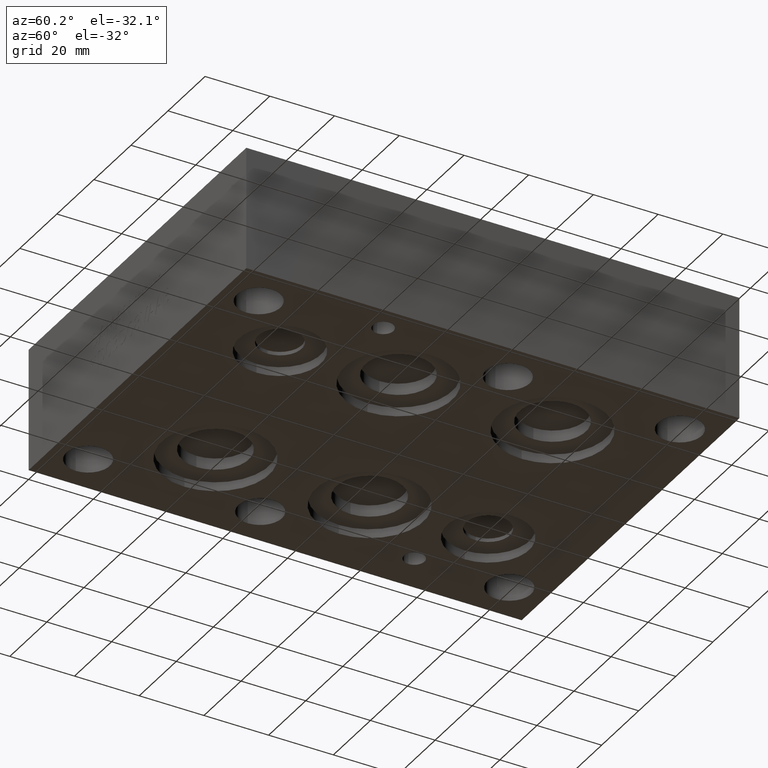
[diagram: clean part render]
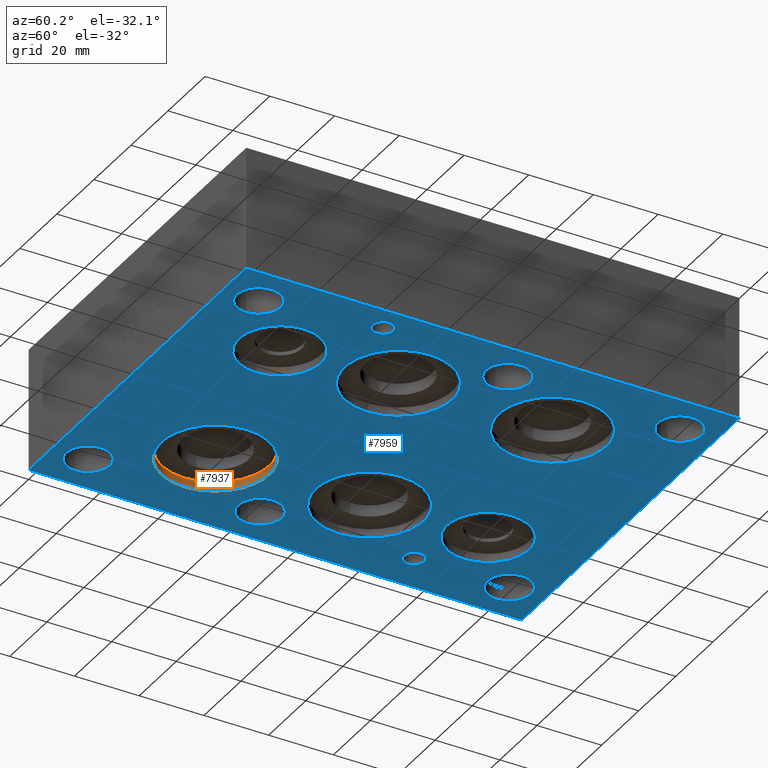
[diagram: same view with the hole feature highlighted: cylindrical wall and planar end face, labeled with their STEP entity ids]
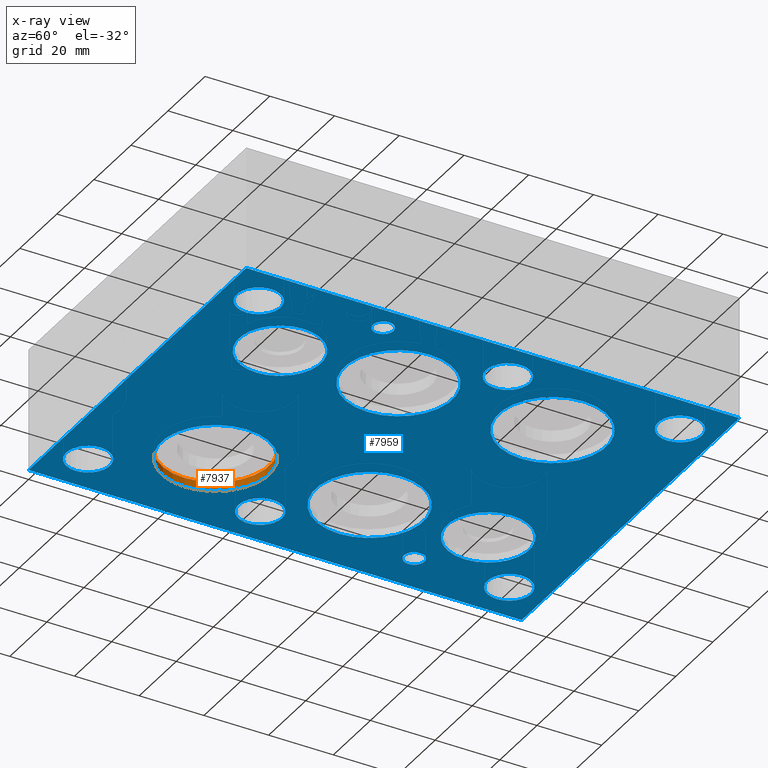
[diagram: x-ray of the same camera — body ghosted, the hole faces saturated]
A machine part, auxiliary view. The highlighted faces form one hole feature of diameter 33.3502 mm: the cylindrical wall (entity #7937, orange) and its adjacent planar end face (entity #7959, blue) — they share a circular edge in the B-rep.
The next image is the same camera in x-ray (body ghosted, the hole faces saturated) — the bore reads through the body.
Wall:
#53=CIRCLE('',#8298,16.6751);
#54=CIRCLE('',#8299,16.6751);
#137=CYLINDRICAL_SURFACE('',#8297,16.6751);
#908=FACE_OUTER_BOUND('',#1368,.T.);
#1368=EDGE_LOOP('',(#6696,#6697,#6698,#6699));
#2196=LINE('',#13279,#2975);
#2975=VECTOR('',#9708,16.6751);
#3664=VERTEX_POINT('',#13276);
#3665=VERTEX_POINT('',#13278);
#4699=EDGE_CURVE('',#3664,#3664,#53,.T.);
#4700=EDGE_CURVE('',#3664,#3665,#2196,.T.);
#4701=EDGE_CURVE('',#3665,#3665,#54,.T.);
#6696=ORIENTED_EDGE('',*,*,#4699,.F.);
#6697=ORIENTED_EDGE('',*,*,#4700,.T.);
#6698=ORIENTED_EDGE('',*,*,#4701,.F.);
#6699=ORIENTED_EDGE('',*,*,#4700,.F.);
#7937=ADVANCED_FACE('',(#908),#137,.F.);
#8297=AXIS2_PLACEMENT_3D('',#13275,#9704,#9705);
#8298=AXIS2_PLACEMENT_3D('',#13277,#9706,#9707);
#8299=AXIS2_PLACEMENT_3D('',#13280,#9709,#9710);
#9704=DIRECTION('center_axis',(0.,0.,-1.));
#9705=DIRECTION('ref_axis',(1.,0.,0.));
#9706=DIRECTION('center_axis',(0.,0.,1.));
#9707=DIRECTION('ref_axis',(1.,0.,0.));
#9708=DIRECTION('',(0.,0.,1.));
#9709=DIRECTION('center_axis',(0.,0.,-1.));
#9710=DIRECTION('ref_axis',(1.,0.,0.));
#13275=CARTESIAN_POINT('Origin',(30.1625,40.4749,1.397));
#13276=CARTESIAN_POINT('',(13.4874,40.4749,0.));
#13277=CARTESIAN_POINT('Origin',(30.1625,40.4749,0.));
#13278=CARTESIAN_POINT('',(13.4874,40.4749,2.794));
#13279=CARTESIAN_POINT('',(13.4874,40.4749,1.397));
#13280=CARTESIAN_POINT('Origin',(30.1625,40.4749,2.794));
End face:
#33=CIRCLE('',#8260,12.7);
#36=CIRCLE('',#8265,12.7);
#47=CIRCLE('',#8286,16.6751);
#49=CIRCLE('',#8290,16.6751);
#51=CIRCLE('',#8294,16.6751);
#53=CIRCLE('',#8298,16.6751);
#56=CIRCLE('',#8304,3.175);
#58=CIRCLE('',#8308,3.175);
#61=CIRCLE('',#8315,6.7437);
#63=CIRCLE('',#8319,6.7437);
#65=CIRCLE('',#8323,6.7437);
#67=CIRCLE('',#8327,6.7437);
#69=CIRCLE('',#8331,6.7437);
#71=CIRCLE('',#8335,6.7437);
#73=CIRCLE('',#8340,6.7437);
#74=CIRCLE('',#8341,6.7437);
#75=CIRCLE('',#8342,6.7437);
#76=CIRCLE('',#8343,6.7437);
#77=CIRCLE('',#8344,6.7437);
#78=CIRCLE('',#8345,6.7437);
#79=CIRCLE('',#8346,6.7437);
#80=CIRCLE('',#8347,6.7437);
#81=CIRCLE('',#8348,6.7437);
#82=CIRCLE('',#8349,6.7437);
#83=CIRCLE('',#8350,6.7437);
#518=FACE_BOUND('',#1392,.T.);
#519=FACE_BOUND('',#1393,.T.);
#520=FACE_BOUND('',#1394,.T.);
#521=FACE_BOUND('',#1395,.T.);
#522=FACE_BOUND('',#1396,.T.);
#523=FACE_BOUND('',#1397,.T.);
#524=FACE_BOUND('',#1398,.T.);
#525=FACE_BOUND('',#1399,.T.);
#526=FACE_BOUND('',#1400,.T.);
#527=FACE_BOUND('',#1401,.T.);
#528=FACE_BOUND('',#1402,.T.);
#529=FACE_BOUND('',#1403,.T.);
#530=FACE_BOUND('',#1404,.T.);
#531=FACE_BOUND('',#1405,.T.);
#930=FACE_OUTER_BOUND('',#1391,.T.);
#1391=EDGE_LOOP('',(#6767,#6768,#6769,#6770));
#1392=EDGE_LOOP('',(#6771));
#1393=EDGE_LOOP('',(#6772));
#1394=EDGE_LOOP('',(#6773));
#1395=EDGE_LOOP('',(#6774));
#1396=EDGE_LOOP('',(#6775));
#1397=EDGE_LOOP('',(#6776));
#1398=EDGE_LOOP('',(#6777));
#1399=EDGE_LOOP('',(#6778));
#1400=EDGE_LOOP('',(#6779,#6780));
#1401=EDGE_LOOP('',(#6781,#6782,#6783));
#1402=EDGE_LOOP('',(#6784,#6785,#6786));
#1403=EDGE_LOOP('',(#6787,#6788,#6789));
#1404=EDGE_LOOP('',(#6790,#6791,#6792));
#1405=EDGE_LOOP('',(#6793,#6794,#6795));
#1857=LINE('',#10964,#2636);
#2217=LINE('',#13514,#2996);
#2218=LINE('',#13516,#2997);
#2219=LINE('',#13517,#2998);
#2636=VECTOR('',#9089,10.);
#2996=VECTOR('',#9811,10.);
#2997=VECTOR('',#9812,10.);
#2998=VECTOR('',#9813,10.);
#3300=VERTEX_POINT('',#10962);
#3301=VERTEX_POINT('',#10963);
#3644=VERTEX_POINT('',#13209);
#3647=VERTEX_POINT('',#13218);
#3658=VERTEX_POINT('',#13255);
#3660=VERTEX_POINT('',#13262);
#3662=VERTEX_POINT('',#13269);
#3664=VERTEX_POINT('',#13276);
#3668=VERTEX_POINT('',#13288);
#3671=VERTEX_POINT('',#13297);
#3676=VERTEX_POINT('',#13335);
#3677=VERTEX_POINT('',#13337);
#3680=VERTEX_POINT('',#13366);
#3681=VERTEX_POINT('',#13368);
#3685=VERTEX_POINT('',#13403);
#3686=VERTEX_POINT('',#13405);
#3689=VERTEX_POINT('',#13436);
#3690=VERTEX_POINT('',#13438);
#3693=VERTEX_POINT('',#13469);
#3694=VERTEX_POINT('',#13471);
#3697=VERTEX_POINT('',#13500);
#3698=VERTEX_POINT('',#13502);
#3701=VERTEX_POINT('',#13513);
#3702=VERTEX_POINT('',#13515);
#3703=VERTEX_POINT('',#13519);
#3704=VERTEX_POINT('',#13522);
#3705=VERTEX_POINT('',#13525);
#3706=VERTEX_POINT('',#13528);
#3707=VERTEX_POINT('',#13531);
#4156=EDGE_CURVE('',#3300,#3301,#1857,.T.);
#4670=EDGE_CURVE('',#3644,#3644,#33,.T.);
#4674=EDGE_CURVE('',#3647,#3647,#36,.T.);
#4690=EDGE_CURVE('',#3658,#3658,#47,.T.);
#4693=EDGE_CURVE('',#3660,#3660,#49,.T.);
#4696=EDGE_CURVE('',#3662,#3662,#51,.T.);
#4699=EDGE_CURVE('',#3664,#3664,#53,.T.);
#4704=EDGE_CURVE('',#3668,#3668,#56,.T.);
#4708=EDGE_CURVE('',#3671,#3671,#58,.T.);
#4717=EDGE_CURVE('',#3676,#3677,#61,.T.);
#4722=EDGE_CURVE('',#3680,#3681,#63,.T.);
#4728=EDGE_CURVE('',#3685,#3686,#65,.T.);
#4733=EDGE_CURVE('',#3689,#3690,#67,.T.);
#4738=EDGE_CURVE('',#3693,#3694,#69,.T.);
#4743=EDGE_CURVE('',#3697,#3698,#71,.T.);
#4747=EDGE_CURVE('',#3701,#3300,#2217,.T.);
#4748=EDGE_CURVE('',#3702,#3701,#2218,.T.);
#4749=EDGE_CURVE('',#3301,#3702,#2219,.T.);
#4750=EDGE_CURVE('',#3686,#3685,#73,.T.);
#4751=EDGE_CURVE('',#3698,#3703,#74,.T.);
#4752=EDGE_CURVE('',#3703,#3697,#75,.T.);
#4753=EDGE_CURVE('',#3677,#3704,#76,.T.);
#4754=EDGE_CURVE('',#3704,#3676,#77,.T.);
#4755=EDGE_CURVE('',#3694,#3705,#78,.T.);
#4756=EDGE_CURVE('',#3705,#3693,#79,.T.);
#4757=EDGE_CURVE('',#3681,#3706,#80,.T.);
#4758=EDGE_CURVE('',#3706,#3680,#81,.T.);
#4759=EDGE_CURVE('',#3690,#3707,#82,.T.);
#4760=EDGE_CURVE('',#3707,#3689,#83,.T.);
#6767=ORIENTED_EDGE('',*,*,#4156,.F.);
#6768=ORIENTED_EDGE('',*,*,#4747,.F.);
#6769=ORIENTED_EDGE('',*,*,#4748,.F.);
#6770=ORIENTED_EDGE('',*,*,#4749,.F.);
#6771=ORIENTED_EDGE('',*,*,#4670,.T.);
#6772=ORIENTED_EDGE('',*,*,#4674,.T.);
#6773=ORIENTED_EDGE('',*,*,#4690,.T.);
#6774=ORIENTED_EDGE('',*,*,#4693,.T.);
#6775=ORIENTED_EDGE('',*,*,#4696,.T.);
#6776=ORIENTED_EDGE('',*,*,#4699,.T.);
#6777=ORIENTED_EDGE('',*,*,#4704,.T.);
#6778=ORIENTED_EDGE('',*,*,#4708,.T.);
#6779=ORIENTED_EDGE('',*,*,#4728,.T.);
#6780=ORIENTED_EDGE('',*,*,#4750,.T.);
#6781=ORIENTED_EDGE('',*,*,#4743,.T.);
#6782=ORIENTED_EDGE('',*,*,#4751,.T.);
#6783=ORIENTED_EDGE('',*,*,#4752,.T.);
#6784=ORIENTED_EDGE('',*,*,#4717,.T.);
#6785=ORIENTED_EDGE('',*,*,#4753,.T.);
#6786=ORIENTED_EDGE('',*,*,#4754,.T.);
#6787=ORIENTED_EDGE('',*,*,#4738,.T.);
#6788=ORIENTED_EDGE('',*,*,#4755,.T.);
#6789=ORIENTED_EDGE('',*,*,#4756,.T.);
#6790=ORIENTED_EDGE('',*,*,#4722,.T.);
#6791=ORIENTED_EDGE('',*,*,#4757,.T.);
#6792=ORIENTED_EDGE('',*,*,#4758,.T.);
#6793=ORIENTED_EDGE('',*,*,#4733,.T.);
#6794=ORIENTED_EDGE('',*,*,#4759,.T.);
#6795=ORIENTED_EDGE('',*,*,#4760,.T.);
#7249=PLANE('',#8339);
#7959=ADVANCED_FACE('',(#930,#518,#519,#520,#521,#522,#523,#524,#525,#526,
#527,#528,#529,#530,#531),#7249,.F.);
#8260=AXIS2_PLACEMENT_3D('',#13210,#9621,#9622);
#8265=AXIS2_PLACEMENT_3D('',#13219,#9632,#9633);
#8286=AXIS2_PLACEMENT_3D('',#13256,#9679,#9680);
#8290=AXIS2_PLACEMENT_3D('',#13263,#9688,#9689);
#8294=AXIS2_PLACEMENT_3D('',#13270,#9697,#9698);
#8298=AXIS2_PLACEMENT_3D('',#13277,#9706,#9707);
#8304=AXIS2_PLACEMENT_3D('',#13289,#9720,#9721);
#8308=AXIS2_PLACEMENT_3D('',#13298,#9730,#9731);
#8315=AXIS2_PLACEMENT_3D('',#13339,#9749,#9750);
#8319=AXIS2_PLACEMENT_3D('',#13370,#9759,#9760);
#8323=AXIS2_PLACEMENT_3D('',#13407,#9769,#9770);
#8327=AXIS2_PLACEMENT_3D('',#13440,#9779,#9780);
#8331=AXIS2_PLACEMENT_3D('',#13473,#9789,#9790);
#8335=AXIS2_PLACEMENT_3D('',#13504,#9799,#9800);
#8339=AXIS2_PLACEMENT_3D('',#13512,#9809,#9810);
#8340=AXIS2_PLACEMENT_3D('',#13518,#9814,#9815);
#8341=AXIS2_PLACEMENT_3D('',#13520,#9816,#9817);
#8342=AXIS2_PLACEMENT_3D('',#13521,#9818,#9819);
#8343=AXIS2_PLACEMENT_3D('',#13523,#9820,#9821);
#8344=AXIS2_PLACEMENT_3D('',#13524,#9822,#9823);
#8345=AXIS2_PLACEMENT_3D('',#13526,#9824,#9825);
#8346=AXIS2_PLACEMENT_3D('',#13527,#9826,#9827);
#8347=AXIS2_PLACEMENT_3D('',#13529,#9828,#9829);
#8348=AXIS2_PLACEMENT_3D('',#13530,#9830,#9831);
#8349=AXIS2_PLACEMENT_3D('',#13532,#9832,#9833);
#8350=AXIS2_PLACEMENT_3D('',#13533,#9834,#9835);
#9089=DIRECTION('',(1.,0.,0.));
#9621=DIRECTION('center_axis',(0.,0.,1.));
#9622=DIRECTION('ref_axis',(1.,0.,0.));
#9632=DIRECTION('center_axis',(0.,0.,1.));
#9633=DIRECTION('ref_axis',(1.,0.,0.));
#9679=DIRECTION('center_axis',(0.,0.,1.));
#9680=DIRECTION('ref_axis',(1.,0.,0.));
#9688=DIRECTION('center_axis',(0.,0.,1.));
#9689=DIRECTION('ref_axis',(1.,0.,0.));
#9697=DIRECTION('center_axis',(0.,0.,1.));
#9698=DIRECTION('ref_axis',(1.,0.,0.));
#9706=DIRECTION('center_axis',(0.,0.,1.));
#9707=DIRECTION('ref_axis',(1.,0.,0.));
#9720=DIRECTION('center_axis',(0.,0.,1.));
#9721=DIRECTION('ref_axis',(1.,0.,0.));
#9730=DIRECTION('center_axis',(0.,0.,1.));
#9731=DIRECTION('ref_axis',(1.,0.,0.));
#9749=DIRECTION('center_axis',(0.,0.,1.));
#9750=DIRECTION('ref_axis',(1.,0.,0.));
#9759=DIRECTION('center_axis',(0.,0.,1.));
#9760=DIRECTION('ref_axis',(1.,0.,0.));
#9769=DIRECTION('center_axis',(0.,0.,1.));
#9770=DIRECTION('ref_axis',(1.,0.,0.));
#9779=DIRECTION('center_axis',(0.,0.,1.));
#9780=DIRECTION('ref_axis',(1.,0.,0.));
#9789=DIRECTION('center_axis',(0.,0.,1.));
#9790=DIRECTION('ref_axis',(1.,0.,0.));
#9799=DIRECTION('center_axis',(0.,0.,1.));
#9800=DIRECTION('ref_axis',(1.,0.,0.));
#9809=DIRECTION('center_axis',(0.,0.,1.));
#9810=DIRECTION('ref_axis',(1.,0.,0.));
#9811=DIRECTION('',(0.,-1.,0.));
#9812=DIRECTION('',(-1.,0.,0.));
#9813=DIRECTION('',(0.,1.,0.));
#9814=DIRECTION('center_axis',(0.,0.,1.));
#9815=DIRECTION('ref_axis',(1.,0.,0.));
#9816=DIRECTION('center_axis',(0.,0.,1.));
#9817=DIRECTION('ref_axis',(1.,0.,0.));
#9818=DIRECTION('center_axis',(0.,0.,1.));
#9819=DIRECTION('ref_axis',(1.,0.,0.));
#9820=DIRECTION('center_axis',(0.,0.,1.));
#9821=DIRECTION('ref_axis',(1.,0.,0.));
#9822=DIRECTION('center_axis',(0.,0.,1.));
#9823=DIRECTION('ref_axis',(1.,0.,0.));
#9824=DIRECTION('center_axis',(0.,0.,1.));
#9825=DIRECTION('ref_axis',(1.,0.,0.));
#9826=DIRECTION('center_axis',(0.,0.,1.));
#9827=DIRECTION('ref_axis',(1.,0.,0.));
#9828=DIRECTION('center_axis',(0.,0.,1.));
#9829=DIRECTION('ref_axis',(1.,0.,0.));
#9830=DIRECTION('center_axis',(0.,0.,1.));
#9831=DIRECTION('ref_axis',(1.,0.,0.));
#9832=DIRECTION('center_axis',(0.,0.,1.));
#9833=DIRECTION('ref_axis',(1.,0.,0.));
#9834=DIRECTION('center_axis',(0.,0.,1.));
#9835=DIRECTION('ref_axis',(1.,0.,0.));
#10962=CARTESIAN_POINT('',(0.,0.,0.));
#10963=CARTESIAN_POINT('',(117.475,0.,0.));
#10964=CARTESIAN_POINT('',(0.,0.,0.));
#13209=CARTESIAN_POINT('',(19.0627,123.8377,0.));
#13210=CARTESIAN_POINT('Origin',(31.7627,123.8377,0.));
#13218=CARTESIAN_POINT('',(73.0377,28.5877,0.));
#13219=CARTESIAN_POINT('Origin',(85.7377,28.5877,0.));
#13255=CARTESIAN_POINT('',(13.4874,88.1253,0.));
#13256=CARTESIAN_POINT('Origin',(30.1625,88.1253,0.));
#13262=CARTESIAN_POINT('',(70.6374,64.3001,0.));
#13263=CARTESIAN_POINT('Origin',(87.3125,64.3001,0.));
#13269=CARTESIAN_POINT('',(70.6374,111.9251,0.));
#13270=CARTESIAN_POINT('Origin',(87.3125,111.9251,0.));
#13276=CARTESIAN_POINT('',(13.4874,40.4749,0.));
#13277=CARTESIAN_POINT('Origin',(30.1625,40.4749,0.));
#13288=CARTESIAN_POINT('',(9.5123,111.9251,0.));
#13289=CARTESIAN_POINT('Origin',(12.6873,111.9251,0.));
#13297=CARTESIAN_POINT('',(106.3625,46.8503,0.));
#13298=CARTESIAN_POINT('Origin',(109.5375,46.8503,0.));
#13335=CARTESIAN_POINT('',(5.95630298964285,11.11885,0.));
#13337=CARTESIAN_POINT('',(19.4436970103572,11.11885,0.));
#13339=CARTESIAN_POINT('Origin',(12.7,11.1125,0.));
#13366=CARTESIAN_POINT('',(99.1702605145633,84.3686986763703,0.));
#13368=CARTESIAN_POINT('',(110.392439485437,91.8501513236297,0.));
#13370=CARTESIAN_POINT('Origin',(104.7877,88.0999,0.));
#13403=CARTESIAN_POINT('',(7.92513822770668,146.062361772293,0.));
#13405=CARTESIAN_POINT('',(17.4621617722933,136.525338227707,0.));
#13407=CARTESIAN_POINT('Origin',(12.6873,141.2875,0.));
#13436=CARTESIAN_POINT('',(98.0313058597012,141.29131,0.));
#13438=CARTESIAN_POINT('',(111.518694140299,141.29131,0.));
#13440=CARTESIAN_POINT('Origin',(104.775,141.28242,0.));
#13469=CARTESIAN_POINT('',(98.0313029896429,11.11885,0.));
#13471=CARTESIAN_POINT('',(111.518697010357,11.11885,0.));
#13473=CARTESIAN_POINT('Origin',(104.775,11.1125,0.));
#13500=CARTESIAN_POINT('',(9.69047734729198,58.2715296945745,0.));
#13502=CARTESIAN_POINT('',(15.722222652708,70.3350203054255,0.));
#13504=CARTESIAN_POINT('Origin',(12.7127,64.3001,0.));
#13512=CARTESIAN_POINT('Origin',(58.7375,76.2,0.));
#13513=CARTESIAN_POINT('',(0.,152.4,0.));
#13514=CARTESIAN_POINT('',(0.,152.4,0.));
#13515=CARTESIAN_POINT('',(117.475,152.4,0.));
#13516=CARTESIAN_POINT('',(117.475,152.4,0.));
#13517=CARTESIAN_POINT('',(117.475,0.,0.));
#13518=CARTESIAN_POINT('Origin',(12.7,141.3002,0.));
#13519=CARTESIAN_POINT('',(5.9563,64.30645,0.));
#13520=CARTESIAN_POINT('Origin',(12.7,64.30645,0.));
#13521=CARTESIAN_POINT('Origin',(12.7,64.30645,0.));
#13522=CARTESIAN_POINT('',(5.9563,11.1252,0.));
#13523=CARTESIAN_POINT('Origin',(12.7,11.1252,0.));
#13524=CARTESIAN_POINT('Origin',(12.7,11.1252,0.));
#13525=CARTESIAN_POINT('',(98.0313,11.1252,0.));
#13526=CARTESIAN_POINT('Origin',(104.775,11.1252,0.));
#13527=CARTESIAN_POINT('Origin',(104.775,11.1252,0.));
#13528=CARTESIAN_POINT('',(98.0313,88.11895,0.));
#13529=CARTESIAN_POINT('Origin',(104.775,88.11895,0.));
#13530=CARTESIAN_POINT('Origin',(104.775,88.11895,0.));
#13531=CARTESIAN_POINT('',(98.0313,141.3002,0.));
#13532=CARTESIAN_POINT('Origin',(104.775,141.3002,0.));
#13533=CARTESIAN_POINT('Origin',(104.775,141.3002,0.));